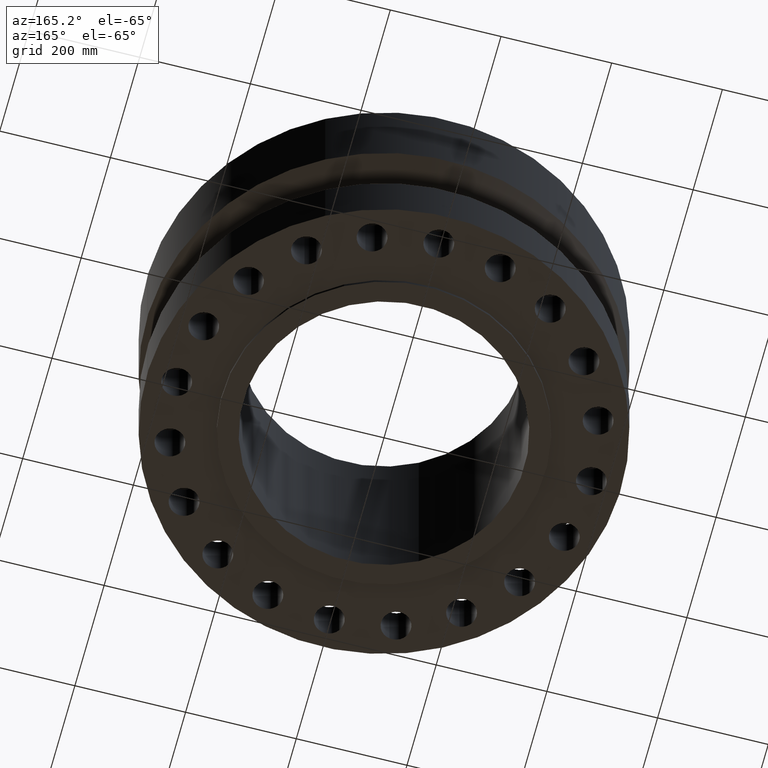
[diagram: clean part render]
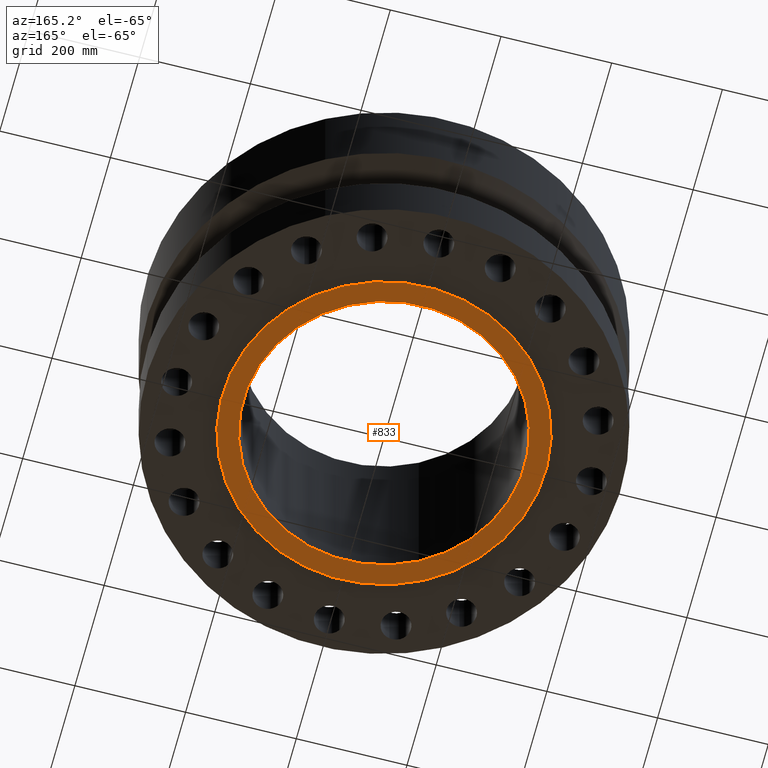
[diagram: same view with one face highlighted and labeled with its STEP entity id]
A machine part, auxiliary view. The second image highlights one B-rep face of the part: STEP entity #833.
In plain terms, the highlighted planar face has unit normal (0, 0, -1).
Its self-contained STEP definition (entity closure, byte-faithful):
#777=AXIS2_PLACEMENT_3D('Circle Axis2P3D',#775,#776,$) ;
#796=AXIS2_PLACEMENT_3D('Circle Axis2P3D',#794,#795,$) ;
#809=AXIS2_PLACEMENT_3D('Plane Axis2P3D',#806,#807,#808) ;
#813=AXIS2_PLACEMENT_3D('Circle Axis2P3D',#811,#812,$) ;
#822=AXIS2_PLACEMENT_3D('Circle Axis2P3D',#820,#821,$) ;
#772=CARTESIAN_POINT('Vertex',(4.79425538606,8.77582561894,-0.250000000001)) ;
#775=CARTESIAN_POINT('Axis2P3D Location',(0.,0.,-0.250000000001)) ;
#779=CARTESIAN_POINT('Vertex',(-4.79425538606,-8.77582561894,-0.250000000001)) ;
#794=CARTESIAN_POINT('Axis2P3D Location',(0.,0.,-0.250000000001)) ;
#806=CARTESIAN_POINT('Axis2P3D Location',(0.,10.,-0.250000000001)) ;
#811=CARTESIAN_POINT('Axis2P3D Location',(0.,0.,-0.250000000001)) ;
#815=CARTESIAN_POINT('Vertex',(-5.51339369397,-10.0921994618,-0.250000000001)) ;
#817=CARTESIAN_POINT('Vertex',(5.51339369397,10.0921994618,-0.250000000001)) ;
#820=CARTESIAN_POINT('Axis2P3D Location',(0.,0.,-0.250000000001)) ;
#776=DIRECTION('Axis2P3D Direction',(0.,0.,-0.0393700787402)) ;
#795=DIRECTION('Axis2P3D Direction',(0.,0.,-0.0393700787402)) ;
#807=DIRECTION('Axis2P3D Direction',(0.,0.,-0.0393700787402)) ;
#808=DIRECTION('Axis2P3D XDirection',(0.0393700787402,0.,0.)) ;
#812=DIRECTION('Axis2P3D Direction',(0.,0.,-0.0393700787402)) ;
#821=DIRECTION('Axis2P3D Direction',(0.,0.,-0.0393700787402)) ;
#826=ORIENTED_EDGE('',*,*,#819,.T.) ;
#827=ORIENTED_EDGE('',*,*,#824,.T.) ;
#830=ORIENTED_EDGE('',*,*,#781,.F.) ;
#831=ORIENTED_EDGE('',*,*,#798,.F.) ;
#832=FACE_BOUND('',#829,.T.) ;
#833=ADVANCED_FACE('PartBody',(#828,#832),#810,.T.) ;
#778=CIRCLE('generated circle',#777,10.) ;
#797=CIRCLE('generated circle',#796,10.) ;
#814=CIRCLE('generated circle',#813,11.5) ;
#823=CIRCLE('generated circle',#822,11.5) ;
#781=EDGE_CURVE('',#773,#780,#778,.T.) ;
#798=EDGE_CURVE('',#780,#773,#797,.T.) ;
#819=EDGE_CURVE('',#816,#818,#814,.T.) ;
#824=EDGE_CURVE('',#818,#816,#823,.T.) ;
#825=EDGE_LOOP('',(#826,#827)) ;
#829=EDGE_LOOP('',(#830,#831)) ;
#828=FACE_OUTER_BOUND('',#825,.T.) ;
#810=PLANE('',#809) ;
#773=VERTEX_POINT('',#772) ;
#780=VERTEX_POINT('',#779) ;
#816=VERTEX_POINT('',#815) ;
#818=VERTEX_POINT('',#817) ;